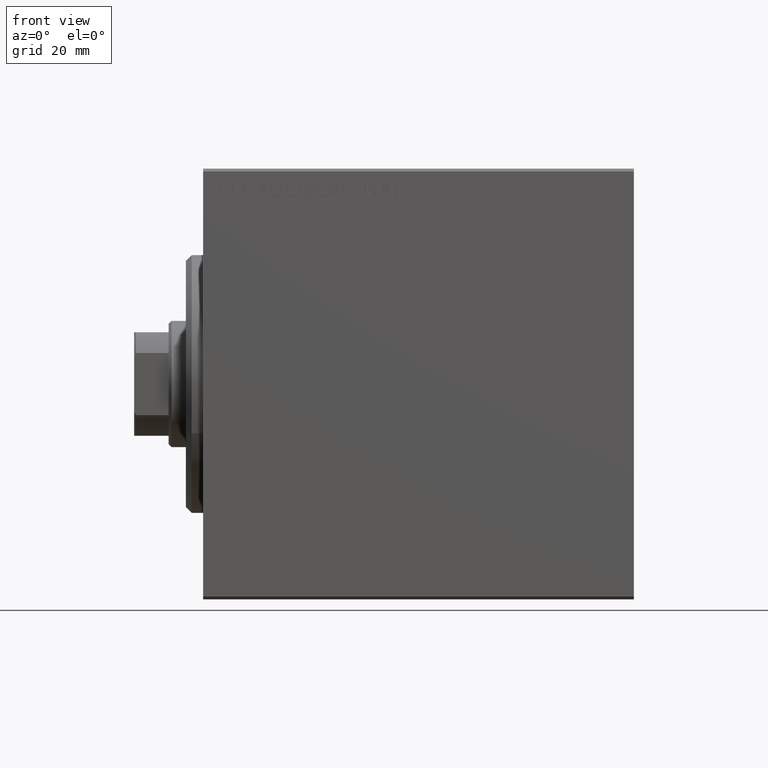
[diagram: clean part render]
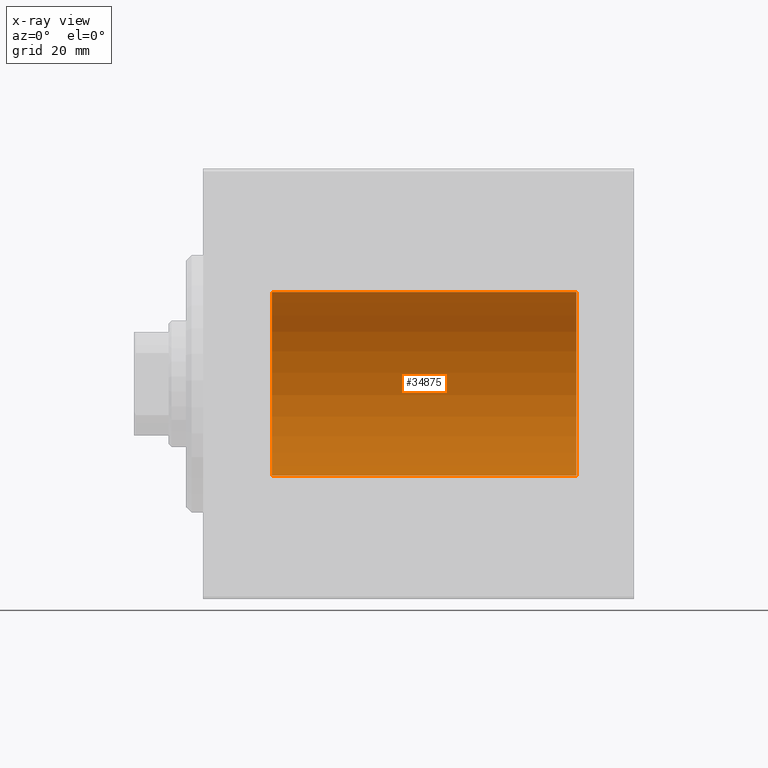
[diagram: x-ray — body ghosted, one internal face saturated and labeled with its STEP entity id]
A machine part, front view, then the same camera in x-ray: the body is ghosted and one INTERNAL B-rep face — a face not visible from any outside direction — is saturated and labeled: STEP entity #34875.
In plain terms, the highlighted cylindrical surface (partial cylindrical patch) has radius 16 mm, axis along (-1, -0, -0).
Its self-contained STEP definition (entity closure, byte-faithful):
#2759 = CARTESIAN_POINT ( 'NONE',  ( 11.99999999999999645, 1.959434878635765131E-15, -16.00000000000000000 ) ) ;
#3666 = ORIENTED_EDGE ( 'NONE', *, *, #39708, .T. ) ;
#3721 = AXIS2_PLACEMENT_3D ( 'NONE', #37519, #7347, #17691 ) ;
#6121 = ORIENTED_EDGE ( 'NONE', *, *, #28662, .F. ) ;
#6315 = VECTOR ( 'NONE', #31684, 1000.000000000000000 ) ;
#7304 = VECTOR ( 'NONE', #18471, 1000.000000000000000 ) ;
#7347 = DIRECTION ( 'NONE',  ( -1.000000000000000000, 0.000000000000000000, 0.000000000000000000 ) ) ;
#8094 = AXIS2_PLACEMENT_3D ( 'NONE', #10286, #27255, #43111 ) ;
#9330 = CYLINDRICAL_SURFACE ( 'NONE', #28297, 16.00000000000000000 ) ;
#10286 = CARTESIAN_POINT ( 'NONE',  ( 11.99999999999999645, 0.000000000000000000, 0.000000000000000000 ) ) ;
#11974 = CARTESIAN_POINT ( 'NONE',  ( 65.00000000000000000, 0.000000000000000000, 16.00000000000000000 ) ) ;
#12412 = FACE_OUTER_BOUND ( 'NONE', #29338, .T. ) ;
#17691 = DIRECTION ( 'NONE',  ( 0.000000000000000000, 0.000000000000000000, 1.000000000000000000 ) ) ;
#18471 = DIRECTION ( 'NONE',  ( -1.000000000000000000, -0.000000000000000000, -0.000000000000000000 ) ) ;
#18552 = CIRCLE ( 'NONE', #8094, 16.00000000000000000 ) ;
#21665 = CARTESIAN_POINT ( 'NONE',  ( 65.00000000000000000, 1.959434878635765131E-15, -16.00000000000000000 ) ) ;
#24807 = ORIENTED_EDGE ( 'NONE', *, *, #37778, .F. ) ;
#27255 = DIRECTION ( 'NONE',  ( -1.000000000000000000, 0.000000000000000000, 0.000000000000000000 ) ) ;
#28297 = AXIS2_PLACEMENT_3D ( 'NONE', #42368, #39737, #29833 ) ;
#28662 = EDGE_CURVE ( 'NONE', #41049, #32141, #34768, .T. ) ;
#29223 = VERTEX_POINT ( 'NONE', #32953 ) ;
#29338 = EDGE_LOOP ( 'NONE', ( #6121, #24807, #30350, #3666 ) ) ;
#29611 = VERTEX_POINT ( 'NONE', #11974 ) ;
#29833 = DIRECTION ( 'NONE',  ( 0.000000000000000000, 0.000000000000000000, 1.000000000000000000 ) ) ;
#30350 = ORIENTED_EDGE ( 'NONE', *, *, #41687, .T. ) ;
#31684 = DIRECTION ( 'NONE',  ( -1.000000000000000000, -0.000000000000000000, -0.000000000000000000 ) ) ;
#31897 = CARTESIAN_POINT ( 'NONE',  ( 65.00000000000000000, 1.959434878635765131E-15, -16.00000000000000000 ) ) ;
#32141 = VERTEX_POINT ( 'NONE', #2759 ) ;
#32953 = CARTESIAN_POINT ( 'NONE',  ( 11.99999999999999645, 0.000000000000000000, 16.00000000000000000 ) ) ;
#34768 = LINE ( 'NONE', #31897, #6315 ) ;
#34875 = ADVANCED_FACE ( 'NONE', ( #12412 ), #9330, .F. ) ;
#37519 = CARTESIAN_POINT ( 'NONE',  ( 65.00000000000000000, 0.000000000000000000, 0.000000000000000000 ) ) ;
#37778 = EDGE_CURVE ( 'NONE', #29611, #41049, #41710, .T. ) ;
#38087 = CARTESIAN_POINT ( 'NONE',  ( 65.00000000000000000, 0.000000000000000000, 16.00000000000000000 ) ) ;
#39708 = EDGE_CURVE ( 'NONE', #29223, #32141, #18552, .T. ) ;
#39737 = DIRECTION ( 'NONE',  ( -1.000000000000000000, -0.000000000000000000, -0.000000000000000000 ) ) ;
#41049 = VERTEX_POINT ( 'NONE', #21665 ) ;
#41392 = LINE ( 'NONE', #38087, #7304 ) ;
#41687 = EDGE_CURVE ( 'NONE', #29611, #29223, #41392, .T. ) ;
#41710 = CIRCLE ( 'NONE', #3721, 16.00000000000000000 ) ;
#42368 = CARTESIAN_POINT ( 'NONE',  ( 65.00000000000000000, 0.000000000000000000, 0.000000000000000000 ) ) ;
#43111 = DIRECTION ( 'NONE',  ( 0.000000000000000000, 0.000000000000000000, 1.000000000000000000 ) ) ;